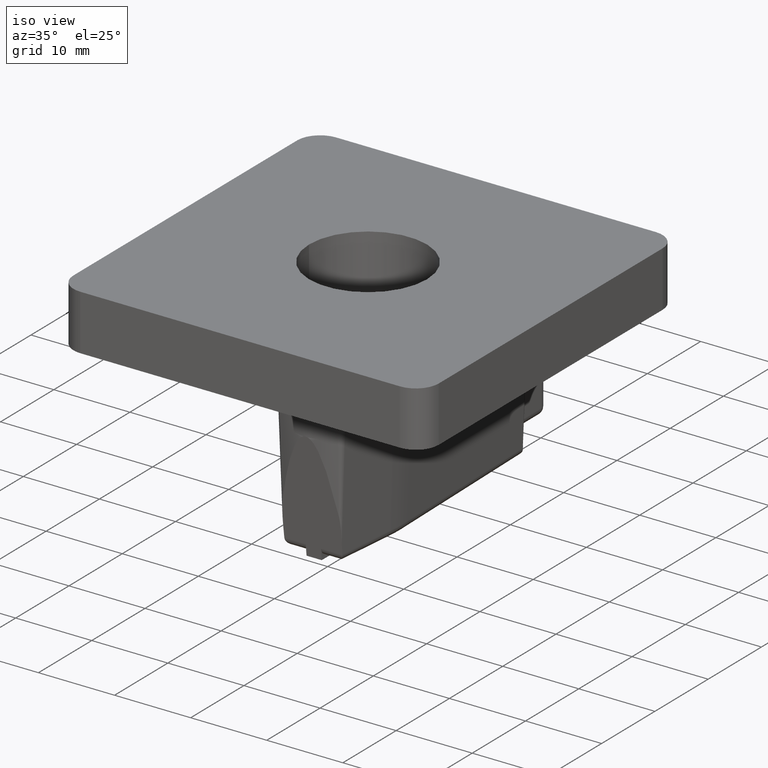
[diagram: clean part render]
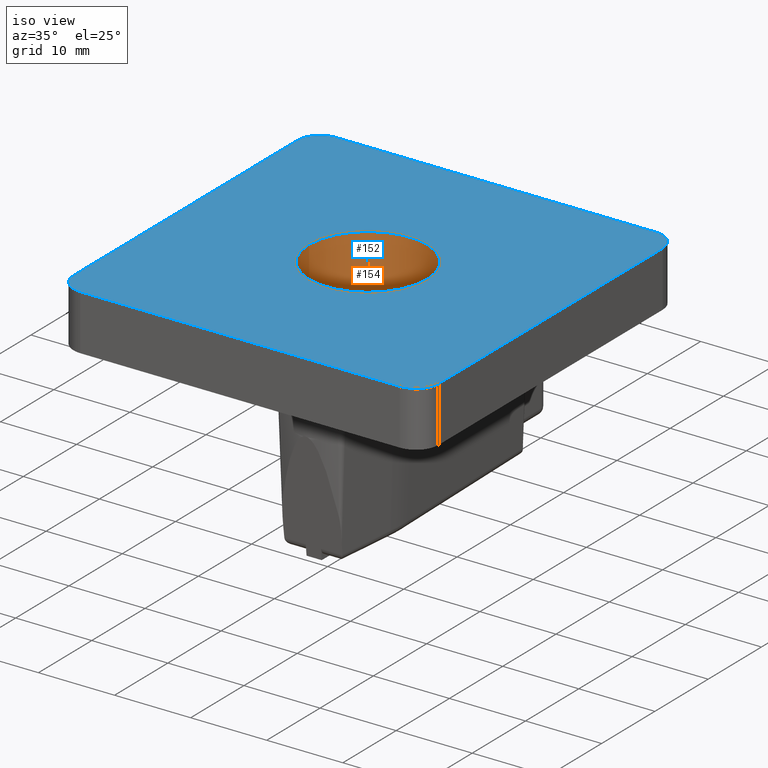
[diagram: same view with the hole feature highlighted: cylindrical wall and planar end face, labeled with their STEP entity ids]
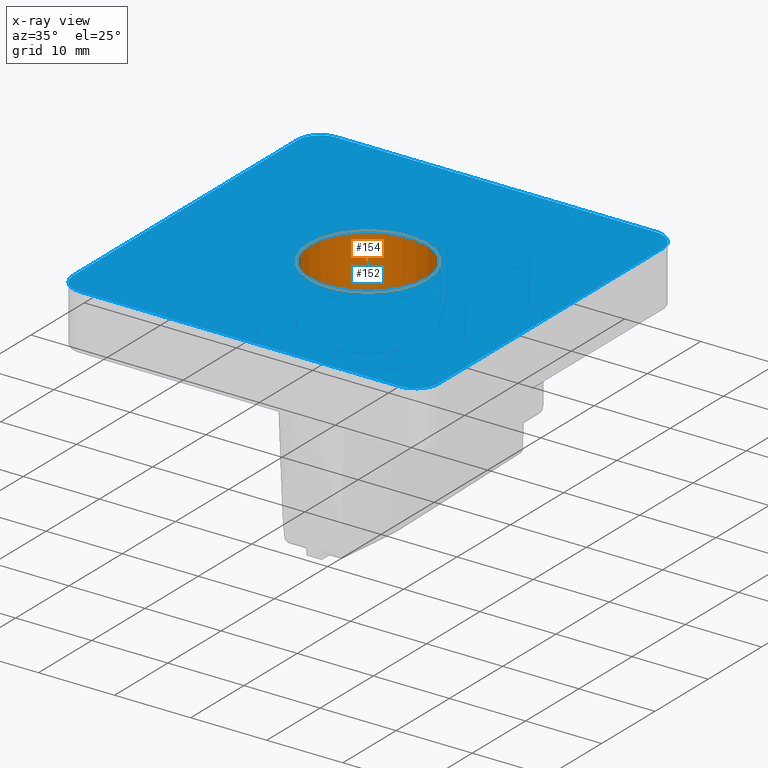
[diagram: x-ray of the same camera — body ghosted, the hole faces saturated]
A machine part, iso view. The highlighted faces form one hole feature of diameter 15.5 mm: the cylindrical wall (entity #154, orange) and its adjacent planar end face (entity #152, blue) — they share a circular edge in the B-rep.
The next image is the same camera in x-ray (body ghosted, the hole faces saturated) — the bore reads through the body.
Wall:
#44=FACE_BOUND('',#304,.T.);
#45=FACE_BOUND('',#305,.T.);
#154=ADVANCED_FACE('',(#44,#45),#176,.F.);
#176=CYLINDRICAL_SURFACE('',#1279,7.75);
#304=EDGE_LOOP('',(#678));
#305=EDGE_LOOP('',(#679));
#342=CIRCLE('',#1267,7.75);
#351=CIRCLE('',#1278,7.75);
#678=ORIENTED_EDGE('',*,*,#966,.F.);
#679=ORIENTED_EDGE('',*,*,#957,.F.);
#800=VERTEX_POINT('',#2031);
#801=VERTEX_POINT('',#2043);
#957=EDGE_CURVE('',#800,#800,#342,.T.);
#966=EDGE_CURVE('',#801,#801,#351,.T.);
#1267=AXIS2_PLACEMENT_3D('',#2030,#1591,#1592);
#1278=AXIS2_PLACEMENT_3D('',#2042,#1613,#1614);
#1279=AXIS2_PLACEMENT_3D('',#2044,#1615,#1616);
#1591=DIRECTION('',(0.,0.,-1.));
#1592=DIRECTION('',(-1.,0.,0.));
#1613=DIRECTION('',(0.,0.,1.));
#1614=DIRECTION('',(1.,0.,0.));
#1615=DIRECTION('',(0.,0.,-1.));
#1616=DIRECTION('',(-1.,0.,0.));
#2030=CARTESIAN_POINT('',(-161.,-241.,7.3));
#2031=CARTESIAN_POINT('',(-168.75,-241.,7.3));
#2042=CARTESIAN_POINT('',(-161.,-241.,0.));
#2043=CARTESIAN_POINT('',(-153.25,-241.,0.));
#2044=CARTESIAN_POINT('',(-161.,-241.,17.5));
End face:
#42=FACE_BOUND('',#301,.T.);
#43=FACE_BOUND('',#302,.T.);
#81=PLANE('',#1272);
#152=ADVANCED_FACE('',(#42,#43),#81,.F.);
#301=EDGE_LOOP('',(#647));
#302=EDGE_LOOP('',(#648,#649,#650,#651,#652,#653,#654,#655));
#342=CIRCLE('',#1267,7.75);
#343=CIRCLE('',#1268,3.);
#344=CIRCLE('',#1269,3.);
#345=CIRCLE('',#1270,3.);
#346=CIRCLE('',#1271,3.);
#647=ORIENTED_EDGE('',*,*,#957,.T.);
#648=ORIENTED_EDGE('',*,*,#942,.F.);
#649=ORIENTED_EDGE('',*,*,#958,.T.);
#650=ORIENTED_EDGE('',*,*,#952,.F.);
#651=ORIENTED_EDGE('',*,*,#959,.T.);
#652=ORIENTED_EDGE('',*,*,#950,.F.);
#653=ORIENTED_EDGE('',*,*,#960,.T.);
#654=ORIENTED_EDGE('',*,*,#946,.F.);
#655=ORIENTED_EDGE('',*,*,#961,.T.);
#786=VERTEX_POINT('',#1997);
#787=VERTEX_POINT('',#1999);
#790=VERTEX_POINT('',#2006);
#791=VERTEX_POINT('',#2008);
#794=VERTEX_POINT('',#2015);
#795=VERTEX_POINT('',#2017);
#796=VERTEX_POINT('',#2021);
#797=VERTEX_POINT('',#2022);
#800=VERTEX_POINT('',#2031);
#942=EDGE_CURVE('',#786,#787,#1050,.T.);
#946=EDGE_CURVE('',#790,#791,#1054,.T.);
#950=EDGE_CURVE('',#794,#795,#1058,.T.);
#952=EDGE_CURVE('',#796,#797,#1060,.T.);
#957=EDGE_CURVE('',#800,#800,#342,.T.);
#958=EDGE_CURVE('',#786,#797,#343,.T.);
#959=EDGE_CURVE('',#796,#795,#344,.T.);
#960=EDGE_CURVE('',#794,#791,#345,.T.);
#961=EDGE_CURVE('',#790,#787,#346,.T.);
#1050=LINE('',#1998,#1148);
#1054=LINE('',#2007,#1152);
#1058=LINE('',#2016,#1156);
#1060=LINE('',#2020,#1158);
#1148=VECTOR('',#1568,1.);
#1152=VECTOR('',#1574,1.);
#1156=VECTOR('',#1580,1.);
#1158=VECTOR('',#1584,1.);
#1267=AXIS2_PLACEMENT_3D('',#2030,#1591,#1592);
#1268=AXIS2_PLACEMENT_3D('',#2032,#1593,#1594);
#1269=AXIS2_PLACEMENT_3D('',#2033,#1595,#1596);
#1270=AXIS2_PLACEMENT_3D('',#2034,#1597,#1598);
#1271=AXIS2_PLACEMENT_3D('',#2035,#1599,#1600);
#1272=AXIS2_PLACEMENT_3D('',#2036,#1601,#1602);
#1568=DIRECTION('',(1.15648231731787E-015,-1.,0.));
#1574=DIRECTION('',(-1.,0.,0.));
#1580=DIRECTION('',(0.,1.,0.));
#1584=DIRECTION('',(1.,0.,0.));
#1591=DIRECTION('',(0.,0.,-1.));
#1592=DIRECTION('',(-1.,0.,0.));
#1593=DIRECTION('',(0.,0.,1.));
#1594=DIRECTION('',(-1.,0.,0.));
#1595=DIRECTION('',(0.,0.,1.));
#1596=DIRECTION('',(-1.,0.,0.));
#1597=DIRECTION('',(0.,0.,1.));
#1598=DIRECTION('',(-1.,0.,0.));
#1599=DIRECTION('',(0.,0.,1.));
#1600=DIRECTION('',(-1.,0.,0.));
#1601=DIRECTION('',(0.,0.,-1.));
#1602=DIRECTION('',(-1.,0.,0.));
#1997=CARTESIAN_POINT('',(-137.,-220.,7.3));
#1998=CARTESIAN_POINT('',(-137.,-217.,7.3));
#1999=CARTESIAN_POINT('',(-137.,-262.,7.3));
#2006=CARTESIAN_POINT('',(-140.,-265.,7.3));
#2007=CARTESIAN_POINT('',(-137.,-265.,7.3));
#2008=CARTESIAN_POINT('',(-182.,-265.,7.3));
#2015=CARTESIAN_POINT('',(-185.,-262.,7.3));
#2016=CARTESIAN_POINT('',(-185.,-265.,7.3));
#2017=CARTESIAN_POINT('',(-185.,-220.,7.3));
#2020=CARTESIAN_POINT('',(-185.,-217.,7.3));
#2021=CARTESIAN_POINT('',(-182.,-217.,7.3));
#2022=CARTESIAN_POINT('',(-140.,-217.,7.3));
#2030=CARTESIAN_POINT('',(-161.,-241.,7.3));
#2031=CARTESIAN_POINT('',(-168.75,-241.,7.3));
#2032=CARTESIAN_POINT('',(-140.,-220.,7.3));
#2033=CARTESIAN_POINT('',(-182.,-220.,7.3));
#2034=CARTESIAN_POINT('',(-182.,-262.,7.3));
#2035=CARTESIAN_POINT('',(-140.,-262.,7.3));
#2036=CARTESIAN_POINT('',(0.,0.,7.3));